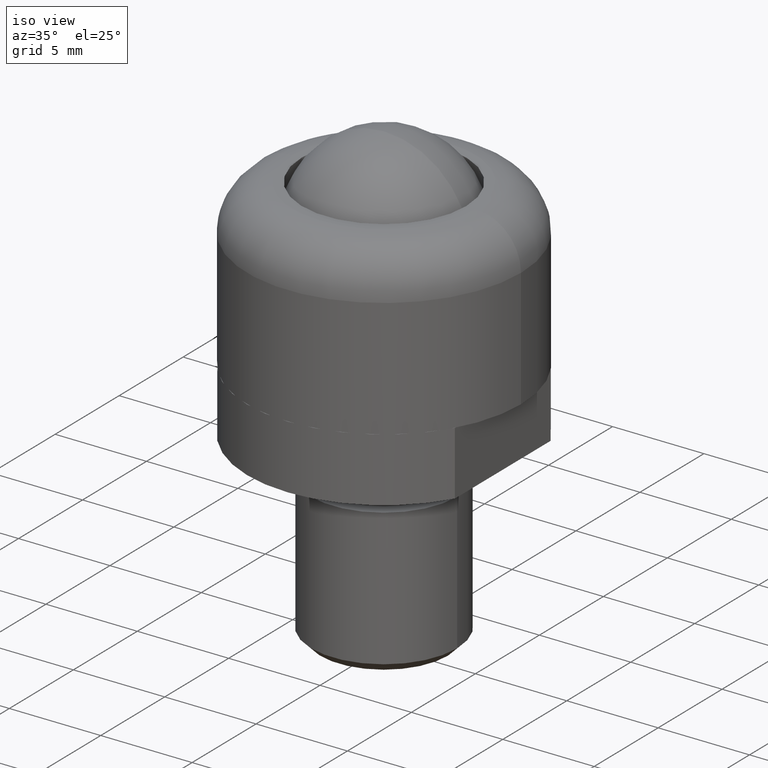
[diagram: clean part render]
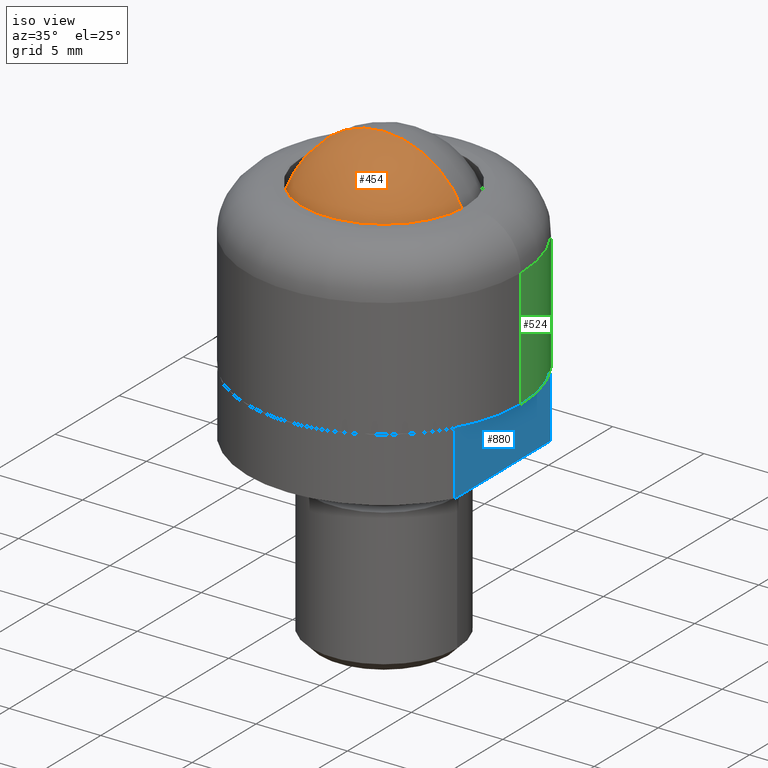
[diagram: same view with three faces highlighted in distinct colors, each labeled with its STEP entity id]
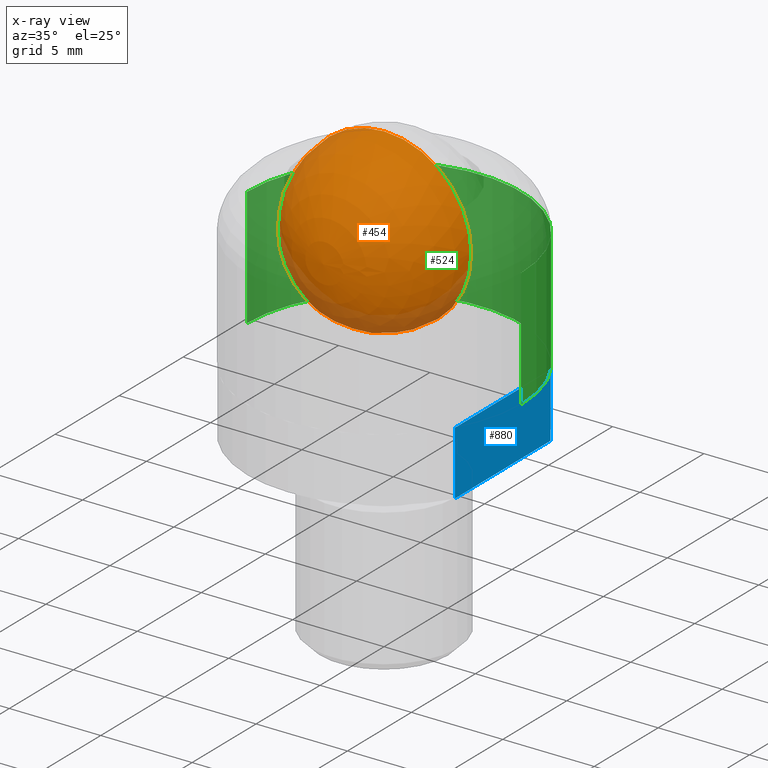
[diagram: x-ray of the same camera — body ghosted, the three highlighted faces saturated]
A machine part, iso view with three faces highlighted in distinct colors.
The next image is the same camera in x-ray (body ghosted, the three faces saturated) — at least one of them is partly hidden behind the body in this view.
Their STEP definitions:

[orange] entity #454 — the highlighted spherical surface has radius 4.7625 mm.
#29 = CARTESIAN_POINT ( 'NONE',  ( 2.916190190469635100E-016, 0.0000000000000000000, 11.50000000000000000 ) ) ;
#39 = AXIS2_PLACEMENT_3D ( 'NONE', #586, #370, #654 ) ;
#59 = DIRECTION ( 'NONE',  ( 1.000000000000000000, 0.0000000000000000000, 0.0000000000000000000 ) ) ;
#71 = EDGE_CURVE ( 'NONE', #609, #414, #94, .T. ) ;
#94 = CIRCLE ( 'NONE', #39, 4.762499999999999300 ) ;
#142 = AXIS2_PLACEMENT_3D ( 'NONE', #949, #726, #59 ) ;
#219 = CARTESIAN_POINT ( 'NONE',  ( 2.916190190469635100E-016, 0.0000000000000000000, 1.975000000000000100 ) ) ;
#220 = AXIS2_PLACEMENT_3D ( 'NONE', #912, #828, #557 ) ;
#240 = FACE_OUTER_BOUND ( 'NONE', #513, .T. ) ;
#370 = DIRECTION ( 'NONE',  ( -0.0000000000000000000, 1.000000000000000000, 0.0000000000000000000 ) ) ;
#414 = VERTEX_POINT ( 'NONE', #219 ) ;
#454 = ADVANCED_FACE ( 'NONE', ( #240 ), #788, .T. ) ;
#499 = ORIENTED_EDGE ( 'NONE', *, *, #71, .F. ) ;
#513 = EDGE_LOOP ( 'NONE', ( #499, #678 ) ) ;
#557 = DIRECTION ( 'NONE',  ( 1.000000000000000000, 1.224646799147353200E-016, 0.0000000000000000000 ) ) ;
#586 = CARTESIAN_POINT ( 'NONE',  ( 0.0000000000000000000, 0.0000000000000000000, 6.737500000000000700 ) ) ;
#609 = VERTEX_POINT ( 'NONE', #29 ) ;
#654 = DIRECTION ( 'NONE',  ( 0.0000000000000000000, 0.0000000000000000000, 1.000000000000000000 ) ) ;
#678 = ORIENTED_EDGE ( 'NONE', *, *, #871, .T. ) ;
#726 = DIRECTION ( 'NONE',  ( 0.0000000000000000000, -1.000000000000000000, 0.0000000000000000000 ) ) ;
#748 = CIRCLE ( 'NONE', #220, 4.762500000000000200 ) ;
#788 = SPHERICAL_SURFACE ( 'NONE', #142, 4.762500000000000200 ) ;
#828 = DIRECTION ( 'NONE',  ( 1.224646799147353200E-016, -1.000000000000000000, 0.0000000000000000000 ) ) ;
#871 = EDGE_CURVE ( 'NONE', #609, #414, #748, .T. ) ;
#912 = CARTESIAN_POINT ( 'NONE',  ( 0.0000000000000000000, 0.0000000000000000000, 6.737500000000000700 ) ) ;
#949 = CARTESIAN_POINT ( 'NONE',  ( 0.0000000000000000000, 0.0000000000000000000, 6.737500000000000700 ) ) ;

[blue] entity #880 — the highlighted planar face has unit normal (1, 0, 0).
#11 = LINE ( 'NONE', #314, #382 ) ;
#28 = CARTESIAN_POINT ( 'NONE',  ( 6.500000000000000000, -3.741657386773955100, -3.499999999999950300 ) ) ;
#43 = ORIENTED_EDGE ( 'NONE', *, *, #129, .F. ) ;
#60 = VERTEX_POINT ( 'NONE', #132 ) ;
#64 = ORIENTED_EDGE ( 'NONE', *, *, #416, .T. ) ;
#91 = DIRECTION ( 'NONE',  ( -0.0000000000000000000, 1.000000000000000000, -0.0000000000000000000 ) ) ;
#116 = ORIENTED_EDGE ( 'NONE', *, *, #337, .T. ) ;
#129 = EDGE_CURVE ( 'NONE', #874, #562, #251, .T. ) ;
#132 = CARTESIAN_POINT ( 'NONE',  ( 6.500000000000000000, 3.741657386773960000, -3.499999999999950300 ) ) ;
#153 = CARTESIAN_POINT ( 'NONE',  ( 6.500000000000000000, -3.741657386773955100, -1000.000000000000000 ) ) ;
#186 = DIRECTION ( 'NONE',  ( 1.000000000000000000, 0.0000000000000000000, 0.0000000000000000000 ) ) ;
#251 = LINE ( 'NONE', #153, #635 ) ;
#290 = DIRECTION ( 'NONE',  ( 0.0000000000000000000, 0.0000000000000000000, 1.000000000000000000 ) ) ;
#314 = CARTESIAN_POINT ( 'NONE',  ( 6.500000000000000000, -3.741657386773940000, -3.499999999999950300 ) ) ;
#337 = EDGE_CURVE ( 'NONE', #874, #60, #11, .T. ) ;
#361 = CARTESIAN_POINT ( 'NONE',  ( 6.500000000000000000, 3.741657386773960000, -1000.000000000000000 ) ) ;
#382 = VECTOR ( 'NONE', #91, 1000.000000000000000 ) ;
#410 = DIRECTION ( 'NONE',  ( 0.0000000000000000000, 0.0000000000000000000, -1.000000000000000000 ) ) ;
#416 = EDGE_CURVE ( 'NONE', #60, #428, #634, .T. ) ;
#417 = AXIS2_PLACEMENT_3D ( 'NONE', #553, #186, #410 ) ;
#428 = VERTEX_POINT ( 'NONE', #714 ) ;
#438 = VECTOR ( 'NONE', #290, 1000.000000000000000 ) ;
#473 = PLANE ( 'NONE',  #417 ) ;
#485 = CARTESIAN_POINT ( 'NONE',  ( 6.500000000000000000, -3.741657386773940000, 0.0000000000000000000 ) ) ;
#553 = CARTESIAN_POINT ( 'NONE',  ( 6.500000000000000000, -3.741657386773940000, -1000.000000000000000 ) ) ;
#562 = VERTEX_POINT ( 'NONE', #920 ) ;
#568 = VECTOR ( 'NONE', #842, 1000.000000000000000 ) ;
#597 = DIRECTION ( 'NONE',  ( 0.0000000000000000000, 0.0000000000000000000, 1.000000000000000000 ) ) ;
#634 = LINE ( 'NONE', #361, #438 ) ;
#635 = VECTOR ( 'NONE', #597, 1000.000000000000000 ) ;
#700 = ORIENTED_EDGE ( 'NONE', *, *, #885, .F. ) ;
#714 = CARTESIAN_POINT ( 'NONE',  ( 6.500000000000000000, 3.741657386773960000, 0.0000000000000000000 ) ) ;
#766 = EDGE_LOOP ( 'NONE', ( #700, #43, #116, #64 ) ) ;
#842 = DIRECTION ( 'NONE',  ( -0.0000000000000000000, 1.000000000000000000, -0.0000000000000000000 ) ) ;
#874 = VERTEX_POINT ( 'NONE', #28 ) ;
#880 = ADVANCED_FACE ( 'NONE', ( #951 ), #473, .T. ) ;
#885 = EDGE_CURVE ( 'NONE', #562, #428, #934, .T. ) ;
#920 = CARTESIAN_POINT ( 'NONE',  ( 6.500000000000000000, -3.741657386773955100, 0.0000000000000000000 ) ) ;
#934 = LINE ( 'NONE', #485, #568 ) ;
#951 = FACE_OUTER_BOUND ( 'NONE', #766, .T. ) ;

[green] entity #524 — the highlighted cylindrical surface (partial cylindrical patch) has radius 7.5 mm, axis along (0, 0, -1).
#34 = LINE ( 'NONE', #831, #777 ) ;
#47 = EDGE_LOOP ( 'NONE', ( #890, #312, #384, #436 ) ) ;
#133 = VERTEX_POINT ( 'NONE', #665 ) ;
#165 = AXIS2_PLACEMENT_3D ( 'NONE', #265, #271, #764 ) ;
#175 = CARTESIAN_POINT ( 'NONE',  ( 7.500000000000000000, 9.184850993605147900E-016, 6.500000000000000000 ) ) ;
#248 = DIRECTION ( 'NONE',  ( -1.000000000000000000, 0.0000000000000000000, 0.0000000000000000000 ) ) ;
#265 = CARTESIAN_POINT ( 'NONE',  ( 0.0000000000000000000, 0.0000000000000000000, 6.500000000000000000 ) ) ;
#271 = DIRECTION ( 'NONE',  ( 0.0000000000000000000, 0.0000000000000000000, -1.000000000000000000 ) ) ;
#272 = CARTESIAN_POINT ( 'NONE',  ( 0.0000000000000000000, 0.0000000000000000000, 0.0000000000000000000 ) ) ;
#312 = ORIENTED_EDGE ( 'NONE', *, *, #636, .T. ) ;
#325 = DIRECTION ( 'NONE',  ( 0.0000000000000000000, 0.0000000000000000000, -1.000000000000000000 ) ) ;
#359 = VERTEX_POINT ( 'NONE', #613 ) ;
#384 = ORIENTED_EDGE ( 'NONE', *, *, #596, .F. ) ;
#390 = CIRCLE ( 'NONE', #165, 7.500000000000000000 ) ;
#395 = DIRECTION ( 'NONE',  ( 0.0000000000000000000, 0.0000000000000000000, -1.000000000000000000 ) ) ;
#399 = VECTOR ( 'NONE', #758, 1000.000000000000000 ) ;
#405 = DIRECTION ( 'NONE',  ( -1.000000000000000000, 0.0000000000000000000, 0.0000000000000000000 ) ) ;
#421 = CIRCLE ( 'NONE', #757, 7.500000000000000000 ) ;
#436 = ORIENTED_EDGE ( 'NONE', *, *, #610, .F. ) ;
#524 = ADVANCED_FACE ( 'NONE', ( #931 ), #541, .T. ) ;
#541 = CYLINDRICAL_SURFACE ( 'NONE', #683, 7.500000000000000000 ) ;
#558 = CARTESIAN_POINT ( 'NONE',  ( -7.500000000000000000, 0.0000000000000000000, 6.500000000000000000 ) ) ;
#585 = VERTEX_POINT ( 'NONE', #558 ) ;
#595 = LINE ( 'NONE', #904, #399 ) ;
#596 = EDGE_CURVE ( 'NONE', #133, #359, #421, .T. ) ;
#610 = EDGE_CURVE ( 'NONE', #585, #133, #34, .T. ) ;
#613 = CARTESIAN_POINT ( 'NONE',  ( 7.500000000000000000, 9.184850993605147900E-016, 0.0000000000000000000 ) ) ;
#621 = VERTEX_POINT ( 'NONE', #175 ) ;
#636 = EDGE_CURVE ( 'NONE', #621, #359, #595, .T. ) ;
#665 = CARTESIAN_POINT ( 'NONE',  ( -7.500000000000000000, 0.0000000000000000000, 0.0000000000000000000 ) ) ;
#683 = AXIS2_PLACEMENT_3D ( 'NONE', #272, #924, #405 ) ;
#757 = AXIS2_PLACEMENT_3D ( 'NONE', #910, #395, #248 ) ;
#758 = DIRECTION ( 'NONE',  ( 0.0000000000000000000, 0.0000000000000000000, -1.000000000000000000 ) ) ;
#764 = DIRECTION ( 'NONE',  ( -1.000000000000000000, 0.0000000000000000000, 0.0000000000000000000 ) ) ;
#777 = VECTOR ( 'NONE', #325, 1000.000000000000000 ) ;
#831 = CARTESIAN_POINT ( 'NONE',  ( -7.500000000000000000, 0.0000000000000000000, 0.0000000000000000000 ) ) ;
#848 = EDGE_CURVE ( 'NONE', #585, #621, #390, .T. ) ;
#890 = ORIENTED_EDGE ( 'NONE', *, *, #848, .T. ) ;
#904 = CARTESIAN_POINT ( 'NONE',  ( 7.500000000000000000, 9.184850993605147900E-016, 0.0000000000000000000 ) ) ;
#910 = CARTESIAN_POINT ( 'NONE',  ( 0.0000000000000000000, 0.0000000000000000000, 0.0000000000000000000 ) ) ;
#924 = DIRECTION ( 'NONE',  ( 0.0000000000000000000, 0.0000000000000000000, -1.000000000000000000 ) ) ;
#931 = FACE_OUTER_BOUND ( 'NONE', #47, .T. ) ;